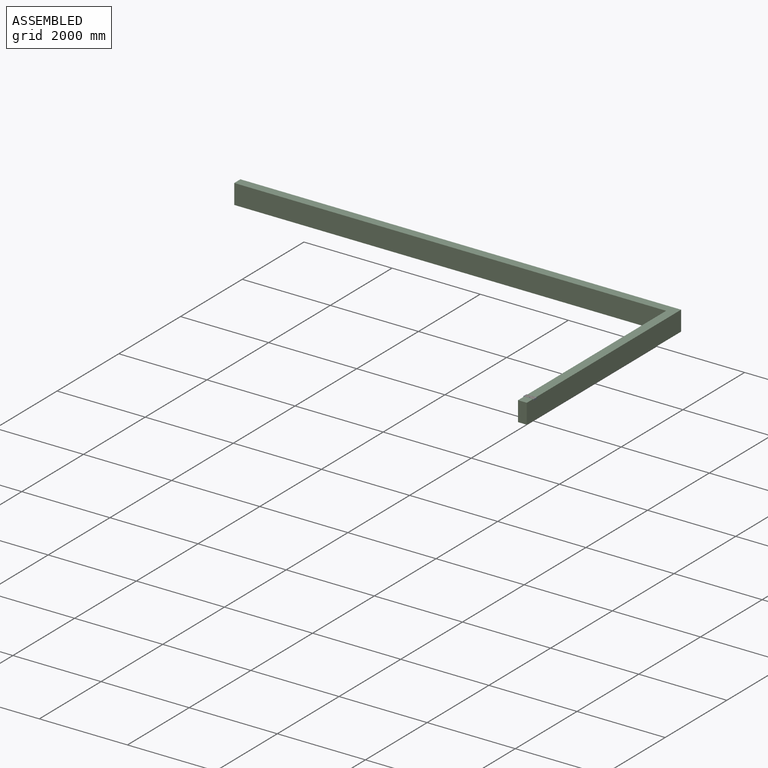
[diagram: assembled view]
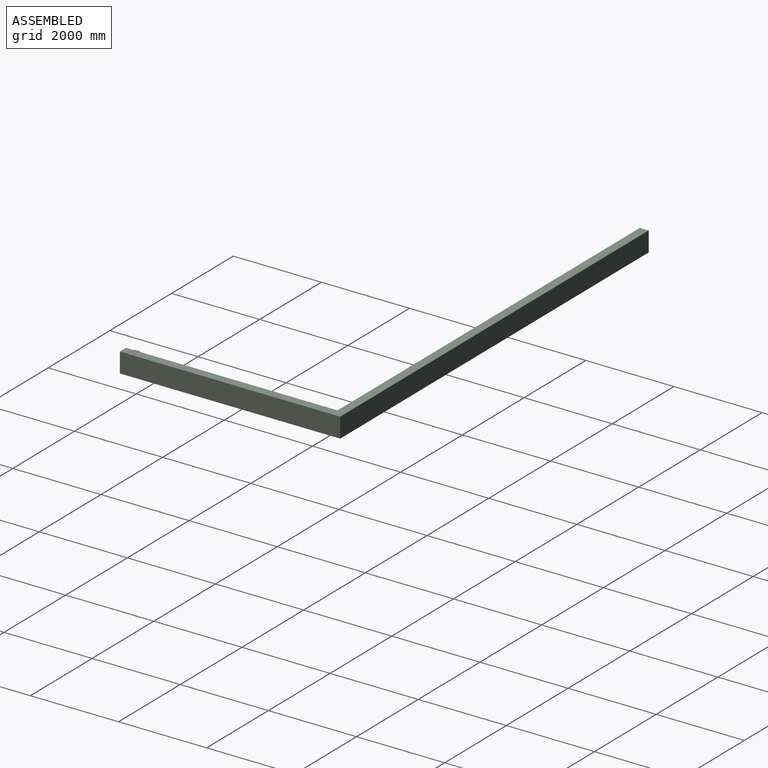
[diagram: assembled view, second angle]
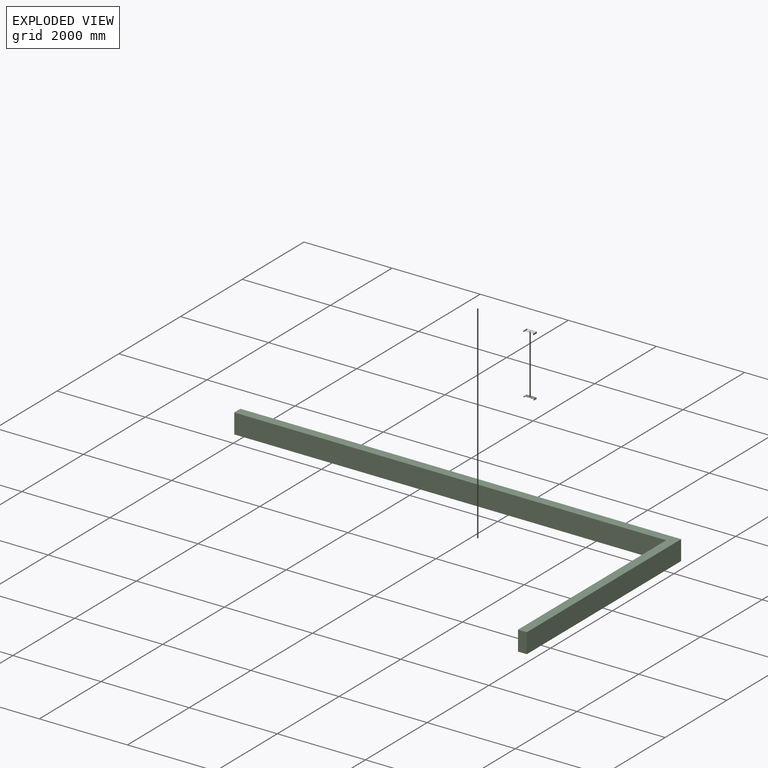
[diagram: exploded view]
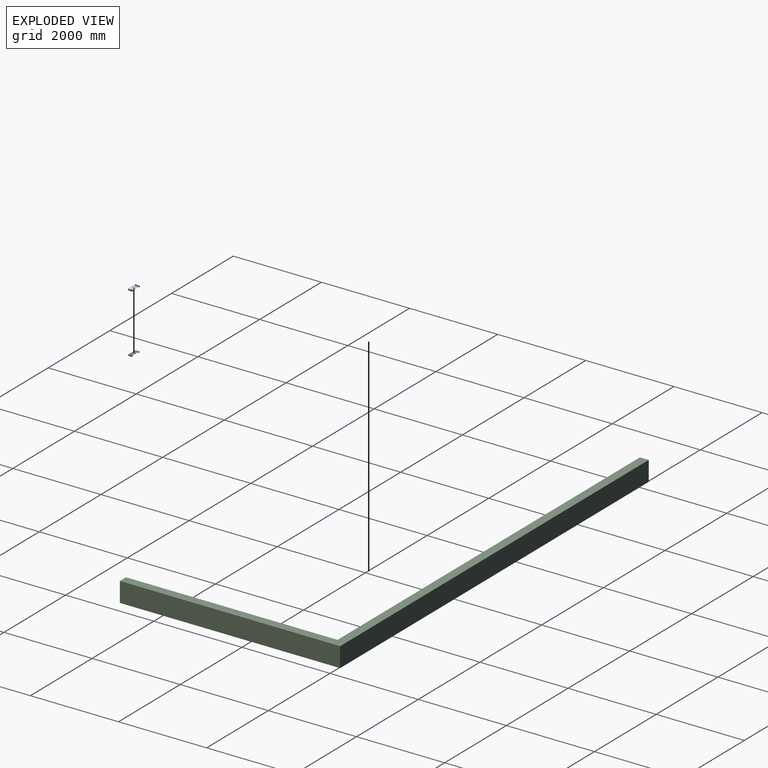
[diagram: exploded view, second angle]
ASSEMBLY  parts=3 mates=2
PART A: 78 faces, bbox 236x101.5x33 mm
  f0: plane 230x95mm, normal (0,0,1), area 7309.8mm2, adj f1,f2,f3,f4,f5,f6,f7,f8
  f1: cylinder r=5mm len=5mm, axis (0,0,1), area 23.6mm2, adj f0,f2,f44,f45
  f2: plane 25.5x3mm, normal (-1,0,0), area 76.5mm2, adj f0,f1,f3,f45
  f3: cylinder r=5mm len=5mm, axis (0,0,1), area 23.6mm2, adj f0,f2,f4,f45
  f4: plane 93x3mm, normal (0,1,0), area 279mm2, adj f0,f3,f5,f45
  f5: cylinder r=5mm len=5mm, axis (0,0,1), area 23.6mm2, adj f0,f4,f6,f45
  f6: plane 25.5x3mm, normal (1,0,0), area 76.5mm2, adj f0,f5,f7,f45
  f7: cylinder r=5mm len=5mm, axis (0,0,1), area 23.6mm2, adj f0,f6,f44,f45
  f8: plane 93x3mm, normal (0,1,0), area 279mm2, adj f0,f9,f40,f45
  f9: cylinder r=5mm len=5mm, axis (0,0,1), area 23.6mm2, adj f0,f8,f10,f45
  f10: plane 25.5x3mm, normal (1,0,0), area 76.5mm2, adj f0,f9,f11,f45
  f11: cylinder r=5mm len=5mm, axis (0,0,1), area 23.6mm2, adj f0,f10,f12,f45
  f12: plane 93x3mm, normal (0,-1,0), area 279mm2, adj f0,f11,f13,f45
  f13: cylinder r=5mm len=5mm, axis (0,0,1), area 23.6mm2, adj f0,f12,f14,f45
  f14: plane 25.5x3mm, normal (-1,0,0), area 76.5mm2, adj f0,f13,f40,f45
  f15: cylinder r=5mm len=5mm, axis (0,0,1), area 23.6mm2, adj f0,f16,f41,f45
  f16: plane 93x3mm, normal (0,-1,0), area 279mm2, adj f0,f15,f17,f45
  f17: cylinder r=5mm len=5mm, axis (0,0,1), area 23.6mm2, adj f0,f16,f18,f45
  f18: plane 25.5x3mm, normal (-1,0,0), area 76.5mm2, adj f0,f17,f19,f45
  f19: cylinder r=5mm len=5mm, axis (0,0,1), area 23.6mm2, adj f0,f18,f20,f45
  f20: plane 93x3mm, normal (0,1,0), area 279mm2, adj f0,f19,f21,f45
  f21: cylinder r=5mm len=5mm, axis (0,0,1), area 23.6mm2, adj f0,f20,f41,f45
  f22: plane 25.5x3mm, normal (1,0,0), area 76.5mm2, adj f0,f23,f42,f45
  f23: cylinder r=5mm len=5mm, axis (0,0,1), area 23.6mm2, adj f0,f22,f24,f45
  f24: plane 93x3mm, normal (0,-1,0), area 279mm2, adj f0,f23,f25,f45
  f25: cylinder r=5mm len=5mm, axis (0,0,1), area 23.6mm2, adj f0,f24,f26,f45
  f26: plane 25.5x3mm, normal (-1,0,0), area 76.5mm2, adj f0,f25,f27,f45
  f27: cylinder r=5mm len=5mm, axis (0,0,1), area 23.6mm2, adj f0,f26,f28,f45
  f28: plane 93x3mm, normal (0,1,0), area 279mm2, adj f0,f27,f42,f45
  f29: cylinder r=3mm len=32mm, axis (0,0,1), area 150.8mm2, adj f30,f43,f45,f46,f73
  f30: plane 199x3mm, normal (0,-1,0), area 597mm2, adj f0,f29,f31,f45
  f31: cylinder r=3mm len=32mm, axis (0,0,1), area 150.8mm2, adj f30,f32,f45,f52,f57
  f32: plane 32x14.5mm, normal (0,-1,0), area 464mm2, adj f31,f45,f54,f55
  f33: plane 99x32mm, normal (1,0,0), area 3168mm2, adj f45,f54,f58,f59
  f34: plane 32x14.5mm, normal (0,1,0), area 464mm2, adj f35,f45,f58,f63
  f35: cylinder r=3mm len=32mm, axis (0,0,1), area 150.8mm2, adj f34,f36,f45,f50,f65
  f36: plane 199x3mm, normal (0,1,0), area 597mm2, adj f0,f35,f37,f45
  f37: cylinder r=3mm len=32mm, axis (0,0,1), area 150.8mm2, adj f36,f38,f45,f48,f74
  f38: plane 32x14.5mm, normal (0,1,0), area 464mm2, adj f37,f45,f68,f72
  f39: plane 99x32mm, normal (-1,0,0), area 3168mm2, adj f45,f66,f67,f68
  f40: cylinder r=5mm len=5mm, axis (0,0,1), area 23.6mm2, adj f0,f8,f14,f45
  f41: plane 25.5x3mm, normal (1,0,0), area 76.5mm2, adj f0,f15,f21,f45
  f42: cylinder r=5mm len=5mm, axis (0,0,1), area 23.6mm2, adj f0,f22,f28,f45
  f43: plane 32x14.5mm, normal (0,-1,0), area 464mm2, adj f29,f45,f66,f71
  f44: plane 93x3mm, normal (0,-1,0), area 279mm2, adj f0,f1,f7,f45
  f45: plane 236x101mm, normal (0,0,-1), area 8093.3mm2, adj f1,f2,f3,f4,f5,f6,f7,f8
  f46: plane 29x15.5mm, normal (0,1,0), area 449.5mm2, adj f0,f29,f47,f75
  f47: plane 95x29mm, normal (1,0,0), area 2755mm2, adj f0,f46,f48,f77
  f48: plane 29x15.5mm, normal (0,-1,0), area 449.5mm2, adj f0,f37,f47,f76
  f49: plane 99x16.23mm, normal (0,0,1), area 128.5mm2, adj f67,f71,f72,f73,f74,f75,f76,f77
  f50: plane 29x15.5mm, normal (0,-1,0), area 449.5mm2, adj f0,f35,f51,f64
  f51: plane 95x29mm, normal (-1,0,0), area 2755mm2, adj f0,f50,f52,f62
  f52: plane 29x15.5mm, normal (0,1,0), area 449.5mm2, adj f0,f31,f51,f60
  f53: plane 99x16.23mm, normal (0,0,1), area 128.5mm2, adj f55,f57,f59,f60,f62,f63,f64,f65
  f54: cylinder r=1mm len=32mm, axis (0,0,-1), area 50.3mm2, adj f32,f33,f45,f56
  f55: cylinder r=1mm len=14.5mm, axis (1,0,0), area 22.8mm2, adj f32,f53,f56,f57
  f56: sphere r=1mm, area 1.6mm2, adj f54,f55,f59
  f57: torus R=2mm, axis (0,0,1), area 5.9mm2, adj f31,f53,f55,f60
  f58: cylinder r=1mm len=32mm, axis (0,0,1), area 50.3mm2, adj f33,f34,f45,f61
  f59: cylinder r=1mm len=99mm, axis (0,1,0), area 155.5mm2, adj f33,f53,f56,f61
  f60: cylinder r=1mm len=16.5mm, axis (1,0,0), area 24.3mm2, adj f52,f53,f57,f62
  f61: sphere r=1mm, area 1.6mm2, adj f58,f59,f63
  f62: cylinder r=1mm len=97mm, axis (0,1,0), area 150.4mm2, adj f51,f53,f60,f64
  f63: cylinder r=1mm len=14.5mm, axis (-1,0,0), area 22.8mm2, adj f34,f53,f61,f65
  f64: cylinder r=1mm len=16.5mm, axis (-1,0,0), area 24.3mm2, adj f50,f53,f62,f65
  f65: torus R=2mm, axis (0,0,1), area 5.9mm2, adj f35,f53,f63,f64
  f66: cylinder r=1mm len=32mm, axis (0,0,-1), area 50.3mm2, adj f39,f43,f45,f69
  f67: cylinder r=1mm len=99mm, axis (0,-1,0), area 155.5mm2, adj f39,f49,f69,f70
  f68: cylinder r=1mm len=32mm, axis (0,0,1), area 50.3mm2, adj f38,f39,f45,f70
  f69: sphere r=1mm, area 1.6mm2, adj f66,f67,f71
  f70: sphere r=1mm, area 1.6mm2, adj f67,f68,f72
  f71: cylinder r=1mm len=14.5mm, axis (1,0,0), area 22.8mm2, adj f43,f49,f69,f73
  f72: cylinder r=1mm len=14.5mm, axis (-1,0,0), area 22.8mm2, adj f38,f49,f70,f74
  f73: torus R=2mm, axis (0,0,1), area 5.9mm2, adj f29,f49,f71,f75
  f74: torus R=2mm, axis (0,0,1), area 5.9mm2, adj f37,f49,f72,f76
  f75: cylinder r=1mm len=16.5mm, axis (1,0,0), area 24.3mm2, adj f46,f49,f73,f77
  f76: cylinder r=1mm len=16.5mm, axis (-1,0,0), area 24.3mm2, adj f48,f49,f74,f77
  f77: cylinder r=1mm len=97mm, axis (0,-1,0), area 150.4mm2, adj f47,f49,f75,f76
PART B: 14 faces, bbox 230x93x32 mm
  f0: plane 93x31mm, normal (-1,0,0), area 2883mm2, adj f1,f8,f9,f13
  f1: plane 93x1.5mm, normal (0,0,-1), area 139.5mm2, adj f0,f2,f8,f9
  f2: plane 93x29.5mm, normal (1,0,0), area 2743.5mm2, adj f1,f8,f9,f10
  f3: plane 225x93mm, normal (0,0,-1), area 20925mm2, adj f8,f9,f10,f11
  f4: plane 93x29.5mm, normal (-1,0,0), area 2743.5mm2, adj f5,f8,f9,f11
  f5: plane 93x1.5mm, normal (0,0,-1), area 139.5mm2, adj f4,f6,f8,f9
  f6: plane 93x31mm, normal (1,0,0), area 2883mm2, adj f5,f8,f9,f12
  f7: plane 228x93mm, normal (0,0,1), area 21204mm2, adj f8,f9,f12,f13
  f8: plane 230x32mm, normal (0,-1,0), area 436.5mm2, adj f0,f1,f2,f3,f4,f5,f6,f7
  f9: plane 230x32mm, normal (0,1,0), area 436.5mm2, adj f0,f1,f2,f3,f4,f5,f6,f7
  f10: cylinder r=1mm len=93mm, axis (0,1,0), area 146.1mm2, adj f2,f3,f8,f9
  f11: cylinder r=1mm len=93mm, axis (0,-1,0), area 146.1mm2, adj f3,f4,f8,f9
  f12: cylinder r=1mm len=93mm, axis (0,1,0), area 146.1mm2, adj f6,f7,f8,f9
  f13: cylinder r=1mm len=93mm, axis (0,-1,0), area 146.1mm2, adj f0,f7,f8,f9
PART C: 8 faces, bbox 10000x5000x450 mm
  f0: plane 4800x450mm, normal (-1,0,0), area 2160000mm2, adj f1,f5,f6,f7
  f1: plane 450x200mm, normal (0,-1,0), area 90000mm2, adj f0,f2,f6,f7
  f2: plane 5000x450mm, normal (1,0,0), area 2250000mm2, adj f1,f3,f6,f7
  f3: plane 10000x450mm, normal (0,1,0), area 4500000mm2, adj f2,f4,f6,f7
  f4: plane 450x200mm, normal (-1,0,0), area 90000mm2, adj f3,f5,f6,f7
  f5: plane 9800x450mm, normal (0,-1,0), area 4410000mm2, adj f0,f4,f6,f7
  f6: plane 10000x5000mm, normal (0,0,1), area 2960000mm2, adj f0,f1,f2,f3,f4,f5
  f7: plane 10000x5000mm, normal (0,0,-1), area 2960000mm2, adj f0,f1,f2,f3,f4,f5
PLACE A rot(axis=(1,0,0),180deg) t=(9900,-4520,450)mm
PLACE B t=(9785,-4473.5,451.5)mm
PLACE C t=(0,230,0)mm fixed
MATE fastened C.f6 <-> B.f3  axis (0,0,1) through (9900,-4770,450)mm
MATE fastened A.f0 <-> C.f6  axis (0,0,-1) through (9900,-4520,450)mm
